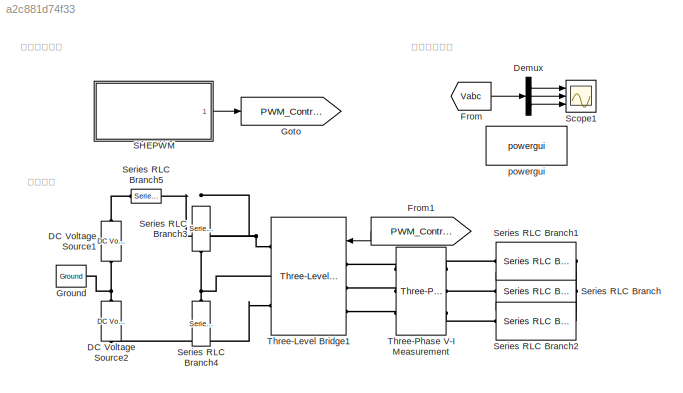
MODEL slx_a2c881d74f33
KIND model
CONFIG AbsTol = auto
CONFIG EnableMultiTasking = off
CONFIG FixedStep = 5e-6
CONFIG MaxStep = 1e-4
CONFIG MinStep = auto
CONFIG RelTol = 1e-3
CONFIG SampleTimeConstraint = Unconstrained
CONFIG Solver = ode3
CONFIG SolverName = ode3
CONFIG StartTime = 0.0
CONFIG StopTime = 1
BLOCK [Reference] DC Voltage Source1  REF=powerlib/Electrical
Sources/DC Voltage Source
  Ports = [0, 0, 0, 0, 0, 1, 1]
  SourceBlock = powerlib/Electrical\nSources/DC Voltage Source
  SourceProductBaseCode = PS
  SourceProductName = Simscape Power Systems
  SourceType = DC Voltage Source
BLOCK [Reference] DC Voltage Source2  REF=powerlib/Electrical
Sources/DC Voltage Source
  Ports = [0, 0, 0, 0, 0, 1, 1]
  SourceBlock = powerlib/Electrical\nSources/DC Voltage Source
  SourceProductBaseCode = PS
  SourceProductName = Simscape Power Systems
  SourceType = DC Voltage Source
BLOCK [Demux] Demux
  DisplayOption = bar
  Outputs = 3
  Ports = [1, 3]
BLOCK [From] From
  GotoTag = Vabc
  TagVisibility = global
BLOCK [From] From1
  GotoTag = PWM_Control
BLOCK [Goto] Goto
  GotoTag = PWM_Control
BLOCK [Reference] Ground  REF=powerlib/Elements/Ground
  Ports = [0, 0, 0, 0, 0, 1]
  SourceBlock = powerlib/Elements/Ground
  SourceProductBaseCode = PS
  SourceProductName = Simscape Power Systems
  SourceType = Ground
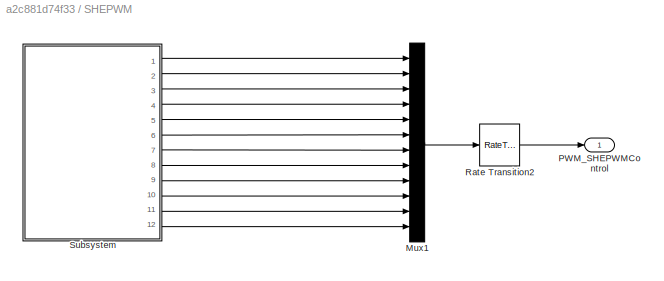
BLOCK [SubSystem] SHEPWM
  Ports = [0, 1]
  RequestExecContextInheritance = off
  Variant = off
BLOCK [Mux] SHEPWM/Mux1
  DisplayOption = bar
  Inputs = 12
  Ports = [12, 1]
BLOCK [Outport] SHEPWM/PWM_SHEPWMControl
  IconDisplay = Port number
BLOCK [RateTransition] SHEPWM/Rate Transition2
  OutPortSampleTime = 5e-6
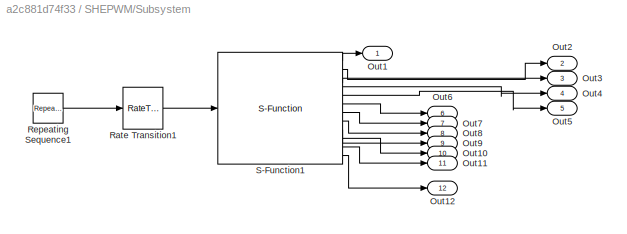
BLOCK [SubSystem] SHEPWM/Subsystem
  Ports = [0, 12]
  RequestExecContextInheritance = off
  Variant = off
BLOCK [Outport] SHEPWM/Subsystem/Out1
  IconDisplay = Port number
BLOCK [Outport] SHEPWM/Subsystem/Out10
  IconDisplay = Port number
  Port = 10
BLOCK [Outport] SHEPWM/Subsystem/Out11
  IconDisplay = Port number
  Port = 11
BLOCK [Outport] SHEPWM/Subsystem/Out12
  IconDisplay = Port number
  Port = 12
BLOCK [Outport] SHEPWM/Subsystem/Out2
  IconDisplay = Port number
  Port = 2
BLOCK [Outport] SHEPWM/Subsystem/Out3
  IconDisplay = Port number
  Port = 3
BLOCK [Outport] SHEPWM/Subsystem/Out4
  IconDisplay = Port number
  Port = 4
BLOCK [Outport] SHEPWM/Subsystem/Out5
  IconDisplay = Port number
  Port = 5
BLOCK [Outport] SHEPWM/Subsystem/Out6
  IconDisplay = Port number
  Port = 6
BLOCK [Outport] SHEPWM/Subsystem/Out7
  IconDisplay = Port number
  Port = 7
BLOCK [Outport] SHEPWM/Subsystem/Out8
  IconDisplay = Port number
  Port = 8
BLOCK [Outport] SHEPWM/Subsystem/Out9
  IconDisplay = Port number
  Port = 9
BLOCK [RateTransition] SHEPWM/Subsystem/Rate Transition1
  OutPortSampleTime = 5e-5
BLOCK [Reference] SHEPWM/Subsystem/Repeating Sequence1  REF=simulink/Sources/Repeating
Sequence
  Ports = [0, 1]
  SourceBlock = simulink/Sources/Repeating\nSequence
  SourceProductBaseCode = SL
  SourceProductName = Simulink
  SourceType = Repeating table
BLOCK [S-Function] SHEPWM/Subsystem/S-Function1
  EnableBusSupport = off
  FunctionName = shepwm_3
  Ports = [1, 12]
  SFcnIsStateOwnerBlock = off
  SFunctionDeploymentMode = off
BLOCK [Scope] Scope1
  NumInputPorts = 3
  Ports = [3]
  ScopeSpecificationString = Simulink.scopes.TimeScopeBlockCfg('CurrentConfiguration', extmgr.ConfigurationSet(extmgr.Configuration('Core','General UI',true),extmgr.Configuration('Core','Source UI',true),extmgr.Configuration('Sources','WiredSimulink',true,'DataLoggingVariableName','Vabc','DataLogging',true),extmgr.Configuration('Visuals','Time Domain',true,'SerializedDisplays',{struct('MinYLimReal','-862.39979','MaxYLimReal',...<+1512ch>
BLOCK [Reference] Series RLC Branch  REF=powerlib/Elements/Series RLC Branch
  Ports = [0, 0, 0, 0, 0, 1, 1]
  SourceBlock = powerlib/Elements/Series RLC Branch
  SourceProductBaseCode = PS
  SourceProductName = Simscape Power Systems
  SourceType = Series RLC Branch
BLOCK [Reference] Series RLC Branch1  REF=powerlib/Elements/Series RLC Branch
  Ports = [0, 0, 0, 0, 0, 1, 1]
  SourceBlock = powerlib/Elements/Series RLC Branch
  SourceProductBaseCode = PS
  SourceProductName = Simscape Power Systems
  SourceType = Series RLC Branch
BLOCK [Reference] Series RLC Branch2  REF=powerlib/Elements/Series RLC Branch
  Ports = [0, 0, 0, 0, 0, 1, 1]
  SourceBlock = powerlib/Elements/Series RLC Branch
  SourceProductBaseCode = PS
  SourceProductName = Simscape Power Systems
  SourceType = Series RLC Branch
BLOCK [Reference] Series RLC Branch3  REF=powerlib/Elements/Series RLC Branch
  Ports = [0, 0, 0, 0, 0, 1, 1]
  SourceBlock = powerlib/Elements/Series RLC Branch
  SourceProductBaseCode = PS
  SourceProductName = Simscape Power Systems
  SourceType = Series RLC Branch
BLOCK [Reference] Series RLC Branch4  REF=powerlib/Elements/Series RLC Branch
  Ports = [0, 0, 0, 0, 0, 1, 1]
  SourceBlock = powerlib/Elements/Series RLC Branch
  SourceProductBaseCode = PS
  SourceProductName = Simscape Power Systems
  SourceType = Series RLC Branch
BLOCK [Reference] Series RLC Branch5  REF=powerlib/Elements/Series RLC Branch
  Ports = [0, 0, 0, 0, 0, 1, 1]
  SourceBlock = powerlib/Elements/Series RLC Branch
  SourceProductBaseCode = PS
  SourceProductName = Simscape Power Systems
  SourceType = Series RLC Branch
BLOCK [Reference] Three-Level Bridge1  REF=powerlib/Power
Electronics/Three-Level Bridge
  Ports = [1, 0, 0, 0, 0, 3, 3]
  SourceBlock = powerlib/Power\nElectronics/Three-Level Bridge
  SourceProductBaseCode = PS
  SourceProductName = Simscape Power Systems
  SourceType = Three-Level Bridge
BLOCK [Reference] Three-Phase V-I Measurement  REF=powerlib/Measurements/Three-Phase
V-I Measurement
  Ports = [0, 0, 0, 0, 0, 3, 3]
  SourceBlock = powerlib/Measurements/Three-Phase\nV-I Measurement
  SourceProductBaseCode = PS
  SourceProductName = Simscape Power Systems
  SourceType = Three-Phase VI Measurement
BLOCK [Reference] powergui  REF=powerlib/powergui
  Ports = []
  Priority = 1
  SourceBlock = powerlib/powergui
  SourceProductBaseCode = PS
  SourceProductName = Simscape Power Systems
  SourceType = PSB option menu block
ANNOTATION (root): 控制算法部分
ANNOTATION (root): 电气部分
ANNOTATION (root): 观测分析部分
LINE Demux:1 -> Scope1:1
LINE Demux:2 -> Scope1:2
LINE Demux:3 -> Scope1:3
LINE From1:1 -> Three-Level Bridge1:1
LINE From:1 -> Demux:1
LINE SHEPWM/Mux1:1 -> SHEPWM/Rate Transition2:1
LINE SHEPWM/Rate Transition2:1 -> SHEPWM/PWM_SHEPWMControl:1
LINE SHEPWM/Subsystem/Rate Transition1:1 -> SHEPWM/Subsystem/S-Function1:1
LINE SHEPWM/Subsystem/Repeating Sequence1:1 -> SHEPWM/Subsystem/Rate Transition1:1
LINE SHEPWM/Subsystem/S-Function1:1 -> SHEPWM/Subsystem/Out1:1
LINE SHEPWM/Subsystem/S-Function1:10 -> SHEPWM/Subsystem/Out10:1
LINE SHEPWM/Subsystem/S-Function1:11 -> SHEPWM/Subsystem/Out11:1
LINE SHEPWM/Subsystem/S-Function1:12 -> SHEPWM/Subsystem/Out12:1
LINE SHEPWM/Subsystem/S-Function1:2 -> SHEPWM/Subsystem/Out2:1
LINE SHEPWM/Subsystem/S-Function1:3 -> SHEPWM/Subsystem/Out3:1
LINE SHEPWM/Subsystem/S-Function1:4 -> SHEPWM/Subsystem/Out4:1
LINE SHEPWM/Subsystem/S-Function1:5 -> SHEPWM/Subsystem/Out5:1
LINE SHEPWM/Subsystem/S-Function1:6 -> SHEPWM/Subsystem/Out6:1
LINE SHEPWM/Subsystem/S-Function1:7 -> SHEPWM/Subsystem/Out7:1
LINE SHEPWM/Subsystem/S-Function1:8 -> SHEPWM/Subsystem/Out8:1
LINE SHEPWM/Subsystem/S-Function1:9 -> SHEPWM/Subsystem/Out9:1
LINE SHEPWM/Subsystem:1 -> SHEPWM/Mux1:1
LINE SHEPWM/Subsystem:10 -> SHEPWM/Mux1:10
LINE SHEPWM/Subsystem:11 -> SHEPWM/Mux1:11
LINE SHEPWM/Subsystem:12 -> SHEPWM/Mux1:12
LINE SHEPWM/Subsystem:2 -> SHEPWM/Mux1:2
LINE SHEPWM/Subsystem:3 -> SHEPWM/Mux1:3
LINE SHEPWM/Subsystem:4 -> SHEPWM/Mux1:4
LINE SHEPWM/Subsystem:5 -> SHEPWM/Mux1:5
LINE SHEPWM/Subsystem:6 -> SHEPWM/Mux1:6
LINE SHEPWM/Subsystem:7 -> SHEPWM/Mux1:7
LINE SHEPWM/Subsystem:8 -> SHEPWM/Mux1:8
LINE SHEPWM/Subsystem:9 -> SHEPWM/Mux1:9
LINE SHEPWM:1 -> Goto:1
PNET net1: DC Voltage Source1:LConn1 -- DC Voltage Source2:RConn1 -- Ground:LConn1
PLINE DC Voltage Source1:RConn1 -- Series RLC Branch5:RConn1
PNET net2: DC Voltage Source2:LConn1 -- Series RLC Branch4:RConn1 -- Three-Level Bridge1:RConn3
PLINE Series RLC Branch1:LConn1 -- Three-Phase V-I Measurement:RConn1
PNET net3: Series RLC Branch1:RConn1 -- Series RLC Branch2:RConn1 -- Series RLC Branch:RConn1
PLINE Series RLC Branch2:LConn1 -- Three-Phase V-I Measurement:RConn3
PNET net4: Series RLC Branch3:LConn1 -- Series RLC Branch5:LConn1 -- Three-Level Bridge1:RConn1
PNET net5: Series RLC Branch3:RConn1 -- Series RLC Branch4:LConn1 -- Three-Level Bridge1:RConn2
PLINE Series RLC Branch:LConn1 -- Three-Phase V-I Measurement:RConn2
PLINE Three-Level Bridge1:LConn1 -- Three-Phase V-I Measurement:LConn1
PLINE Three-Level Bridge1:LConn2 -- Three-Phase V-I Measurement:LConn2
PLINE Three-Level Bridge1:LConn3 -- Three-Phase V-I Measurement:LConn3
note: PNET lines group multi-terminal physical nets as a canonical sorted terminal list (undirected conserving connections); 2-terminal nets keep the pairwise PLINE form
